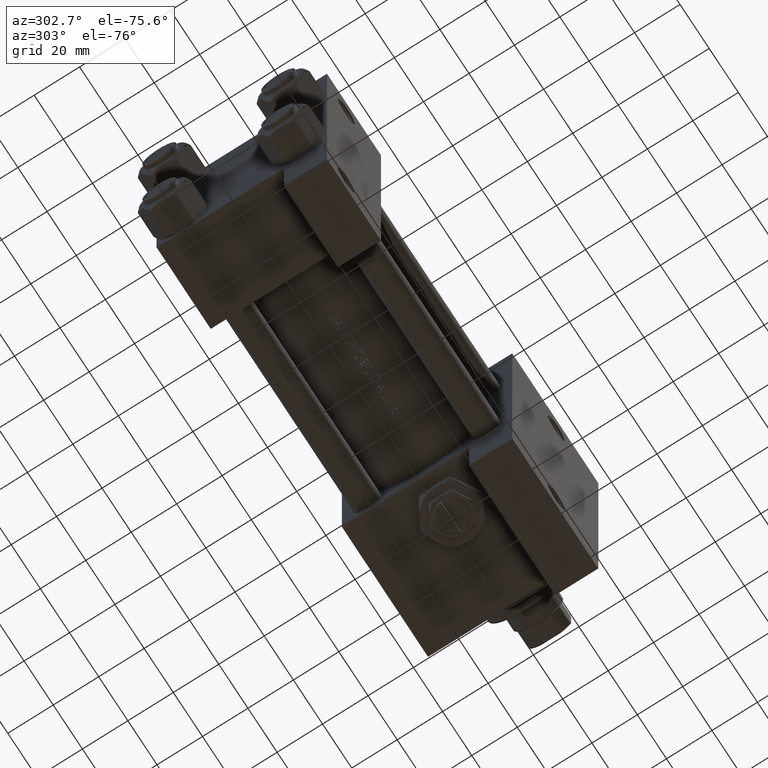
[diagram: clean part render]
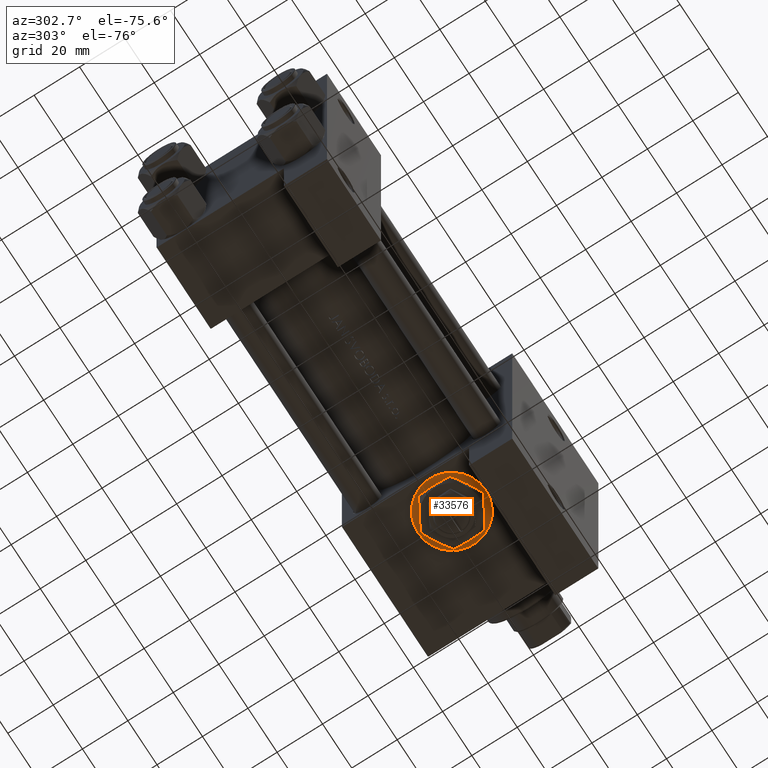
[diagram: same view with one face highlighted and labeled with its STEP entity id]
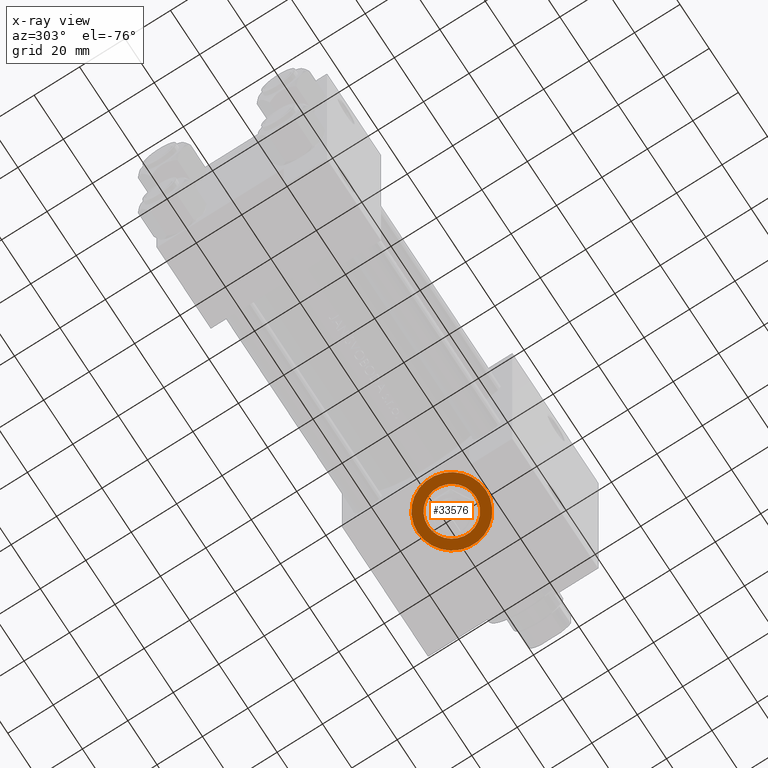
[diagram: x-ray of the same camera — body ghosted, the highlighted face saturated]
A machine part, auxiliary view. The second image highlights one B-rep face of the part: STEP entity #33576.
The next image is the same camera in x-ray: the body ghosted, the highlighted face saturated — about 0% of this face is hidden behind the body in this view.
In plain terms, the highlighted planar face has unit normal (0, 0, -1).
Its self-contained STEP definition (entity closure, byte-faithful):
#648 = VERTEX_POINT ( 'NONE', #6988 ) ;
#735 = CARTESIAN_POINT ( 'NONE',  ( 144.0000000000000284, 37.29999999999999716, 0.000000000000000000 ) ) ;
#1312 = EDGE_CURVE ( 'NONE', #648, #39901, #16184, .T. ) ;
#1464 = CARTESIAN_POINT ( 'NONE',  ( 144.0000000000000284, 37.29999999999999716, 0.000000000000000000 ) ) ;
#4960 = DIRECTION ( 'NONE',  ( 0.000000000000000000, 0.000000000000000000, 1.000000000000000000 ) ) ;
#5218 = DIRECTION ( 'NONE',  ( 0.000000000000000000, 1.000000000000000000, 0.000000000000000000 ) ) ;
#5907 = EDGE_CURVE ( 'NONE', #44467, #18156, #30455, .T. ) ;
#6988 = CARTESIAN_POINT ( 'NONE',  ( 144.0000000000000284, 37.29999999999999005, -10.47999999999998622 ) ) ;
#9575 = ORIENTED_EDGE ( 'NONE', *, *, #1312, .F. ) ;
#10249 = ORIENTED_EDGE ( 'NONE', *, *, #44247, .F. ) ;
#11506 = ORIENTED_EDGE ( 'NONE', *, *, #5907, .T. ) ;
#11841 = CARTESIAN_POINT ( 'NONE',  ( 144.0000000000000284, 37.29999999999999005, 0.000000000000000000 ) ) ;
#12557 = CIRCLE ( 'NONE', #47558, 10.47999999999998622 ) ;
#14062 = AXIS2_PLACEMENT_3D ( 'NONE', #46941, #23526, #31466 ) ;
#16184 = CIRCLE ( 'NONE', #47941, 10.47999999999998622 ) ;
#16749 = DIRECTION ( 'NONE',  ( 0.000000000000000000, 1.000000000000000000, 0.000000000000000000 ) ) ;
#18156 = VERTEX_POINT ( 'NONE', #37972 ) ;
#18262 = CARTESIAN_POINT ( 'NONE',  ( 144.0000000000000284, 37.29999999999999716, -15.00000000000002487 ) ) ;
#18385 = ORIENTED_EDGE ( 'NONE', *, *, #36896, .T. ) ;
#23526 = DIRECTION ( 'NONE',  ( 0.000000000000000000, 1.000000000000000000, 0.000000000000000000 ) ) ;
#26997 = DIRECTION ( 'NONE',  ( 0.000000000000000000, 1.000000000000000000, 0.000000000000000000 ) ) ;
#30455 = CIRCLE ( 'NONE', #32055, 15.00000000000002487 ) ;
#30717 = CIRCLE ( 'NONE', #14062, 15.00000000000002487 ) ;
#31312 = PLANE ( 'NONE',  #33776 ) ;
#31387 = EDGE_LOOP ( 'NONE', ( #10249, #9575 ) ) ;
#31466 = DIRECTION ( 'NONE',  ( 0.000000000000000000, 0.000000000000000000, 1.000000000000000000 ) ) ;
#31737 = CARTESIAN_POINT ( 'NONE',  ( 144.0000000000000284, 37.29999999999999005, 10.47999999999998622 ) ) ;
#32055 = AXIS2_PLACEMENT_3D ( 'NONE', #1464, #39032, #4960 ) ;
#33576 = ADVANCED_FACE ( 'NONE', ( #35058, #46049 ), #31312, .T. ) ;
#33776 = AXIS2_PLACEMENT_3D ( 'NONE', #735, #5218, #42802 ) ;
#35058 = FACE_BOUND ( 'NONE', #31387, .T. ) ;
#36896 = EDGE_CURVE ( 'NONE', #18156, #44467, #30717, .T. ) ;
#37972 = CARTESIAN_POINT ( 'NONE',  ( 144.0000000000000284, 37.29999999999999716, 15.00000000000002487 ) ) ;
#39032 = DIRECTION ( 'NONE',  ( 0.000000000000000000, 1.000000000000000000, 0.000000000000000000 ) ) ;
#39901 = VERTEX_POINT ( 'NONE', #31737 ) ;
#42429 = DIRECTION ( 'NONE',  ( 0.000000000000000000, 0.000000000000000000, 1.000000000000000000 ) ) ;
#42802 = DIRECTION ( 'NONE',  ( 0.000000000000000000, -0.000000000000000000, 1.000000000000000000 ) ) ;
#42878 = DIRECTION ( 'NONE',  ( 0.000000000000000000, 0.000000000000000000, 1.000000000000000000 ) ) ;
#44247 = EDGE_CURVE ( 'NONE', #39901, #648, #12557, .T. ) ;
#44467 = VERTEX_POINT ( 'NONE', #18262 ) ;
#46049 = FACE_OUTER_BOUND ( 'NONE', #46134, .T. ) ;
#46134 = EDGE_LOOP ( 'NONE', ( #18385, #11506 ) ) ;
#46613 = CARTESIAN_POINT ( 'NONE',  ( 144.0000000000000284, 37.29999999999999005, 0.000000000000000000 ) ) ;
#46941 = CARTESIAN_POINT ( 'NONE',  ( 144.0000000000000284, 37.29999999999999716, 0.000000000000000000 ) ) ;
#47558 = AXIS2_PLACEMENT_3D ( 'NONE', #11841, #26997, #42429 ) ;
#47941 = AXIS2_PLACEMENT_3D ( 'NONE', #46613, #16749, #42878 ) ;